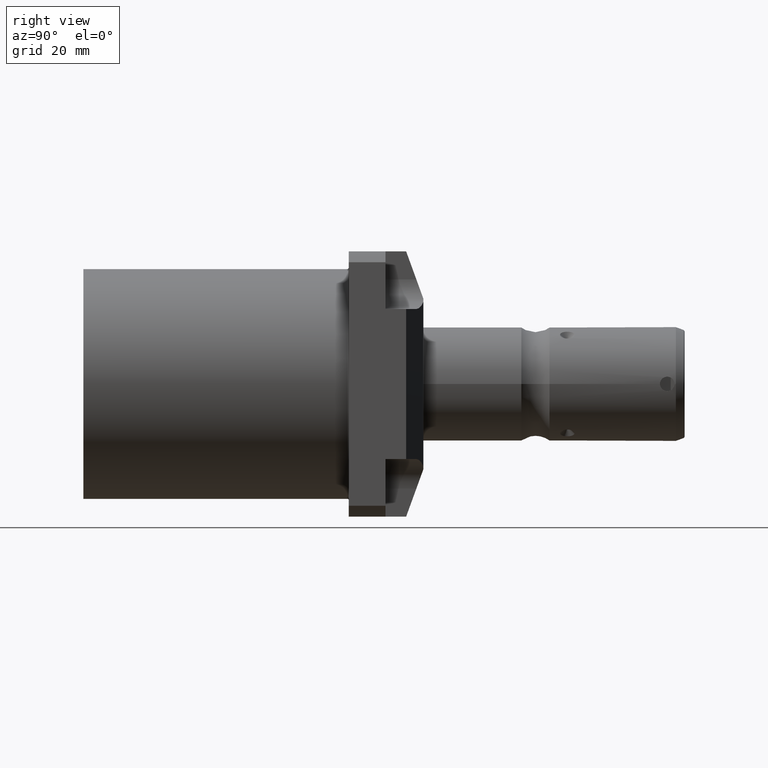
[diagram: clean part render]
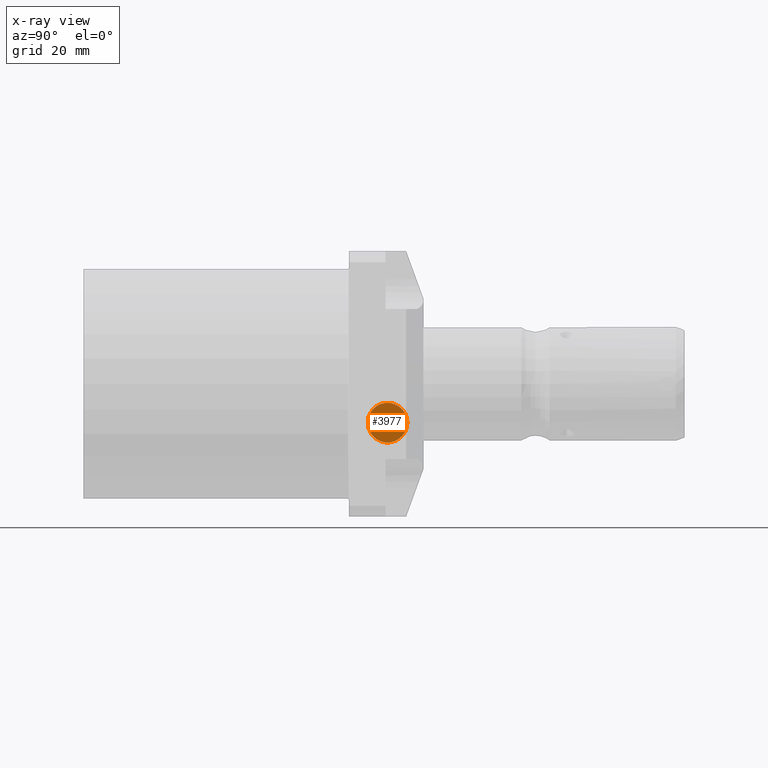
[diagram: x-ray — body ghosted, one internal face saturated and labeled with its STEP entity id]
A machine part, right view, then the same camera in x-ray: the body is ghosted and one INTERNAL B-rep face — a face not visible from any outside direction — is saturated and labeled: STEP entity #3977.
In plain terms, the highlighted planar face has unit normal (-1, 0, 0).
Its self-contained STEP definition (entity closure, byte-faithful):
#1434=CARTESIAN_POINT('',(-5.5296E1,1.01905E2,-1.29794E1));
#1435=DIRECTION('',(-1.E0,0.E0,0.E0));
#1436=DIRECTION('',(0.E0,1.E0,0.E0));
#1437=AXIS2_PLACEMENT_3D('',#1434,#1435,#1436);
#1439=CARTESIAN_POINT('',(-5.5296E1,1.01905E2,-1.29794E1));
#1440=DIRECTION('',(-1.E0,0.E0,0.E0));
#1441=DIRECTION('',(0.E0,-1.E0,0.E0));
#1442=AXIS2_PLACEMENT_3D('',#1439,#1440,#1441);
#1856=CARTESIAN_POINT('',(-5.5296E1,1.085598E2,-1.29794E1));
#1857=CARTESIAN_POINT('',(-5.5296E1,9.52502E1,-1.29794E1));
#1858=VERTEX_POINT('',#1856);
#1859=VERTEX_POINT('',#1857);
#3967=CARTESIAN_POINT('',(-5.5296E1,1.01905E2,-1.29794E1));
#3968=DIRECTION('',(-1.E0,0.E0,0.E0));
#3969=DIRECTION('',(0.E0,0.E0,1.E0));
#3970=AXIS2_PLACEMENT_3D('',#3967,#3968,#3969);
#3971=PLANE('',#3970);
#3973=ORIENTED_EDGE('',*,*,#3972,.T.);
#3974=ORIENTED_EDGE('',*,*,#3957,.T.);
#3975=EDGE_LOOP('',(#3973,#3974));
#3976=FACE_OUTER_BOUND('',#3975,.F.);
#1438=CIRCLE('',#1437,6.6548E0);
#1443=CIRCLE('',#1442,6.6548E0);
#3957=EDGE_CURVE('',#1859,#1858,#1443,.T.);
#3972=EDGE_CURVE('',#1858,#1859,#1438,.T.);
#3977=ADVANCED_FACE('',(#3976),#3971,.F.);